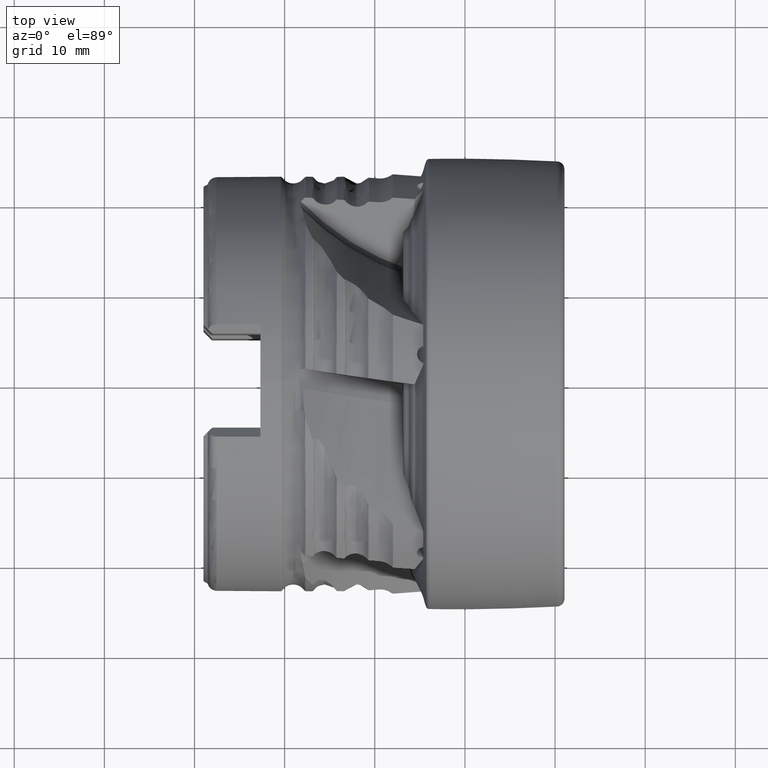
[diagram: clean part render]
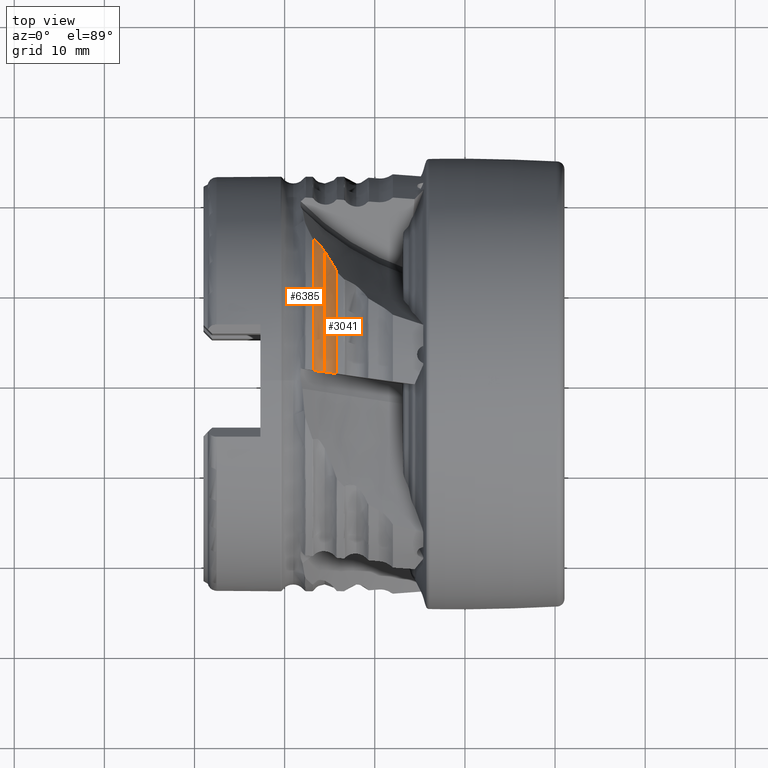
[diagram: same view with one multi-face feature highlighted, each face labeled with its STEP entity id]
A machine part, top view. The highlighted faces form ONE feature: a constant-radius fillet chain: 2 tangent blend faces with common blend radius 1.5 mm. The faces share edges in the B-rep.
Their STEP definitions:
[1] entity #6385 (Torus):
#118 = CARTESIAN_POINT ( 'NONE',  ( -26.79392989822396842, 0.0000000000000000000, 0.0000000000000000000 ) ) ;
#218 = CIRCLE ( 'NONE', #10230, 22.25000000000000000 ) ;
#595 = CARTESIAN_POINT ( 'NONE',  ( -25.71776792278862089, 14.62537613401117120, 16.77730285887452766 ) ) ;
#658 = CARTESIAN_POINT ( 'NONE',  ( -26.69614980013806971, 15.72618751149968475, 16.47843376629433720 ) ) ;
#687 = CARTESIAN_POINT ( 'NONE',  ( -25.67192528672354257, 0.9642252233599770683, 22.22910398275950783 ) ) ;
#990 = VERTEX_POINT ( 'NONE', #12282 ) ;
#1181 = CARTESIAN_POINT ( 'NONE',  ( -25.54999999999999361, 0.0000000000000000000, 0.0000000000000000000 ) ) ;
#1318 = AXIS2_PLACEMENT_3D ( 'NONE', #1181, #10918, #12448 ) ;
#1587 = EDGE_CURVE ( 'NONE', #990, #5705, #14664, .T. ) ;
#1743 = EDGE_CURVE ( 'NONE', #7801, #990, #218, .T. ) ;
#2001 = ORIENTED_EDGE ( 'NONE', *, *, #10287, .T. ) ;
#2035 = CARTESIAN_POINT ( 'NONE',  ( -26.50666080885806508, 15.58417444614990899, 16.35631834725118594 ) ) ;
#2249 = CIRCLE ( 'NONE', #5194, 22.91176470588235503 ) ;
#2613 = DIRECTION ( 'NONE',  ( 0.0000000000000000000, 0.0000000000000000000, -1.000000000000000000 ) ) ;
#3493 = CARTESIAN_POINT ( 'NONE',  ( -25.63219113664221283, 14.50265715853362636, 16.87484533230028916 ) ) ;
#3560 = TOROIDAL_SURFACE ( 'NONE', #1318, 23.75000000000000000, 1.500000000000001776 ) ;
#3804 = DIRECTION ( 'NONE',  ( 1.000000000000000000, -0.0000000000000000000, -0.0000000000000000000 ) ) ;
#4563 = EDGE_CURVE ( 'NONE', #7801, #12148, #6560, .T. ) ;
#5194 = AXIS2_PLACEMENT_3D ( 'NONE', #118, #14486, #10132 ) ;
#5319 = ORIENTED_EDGE ( 'NONE', *, *, #1587, .F. ) ;
#5705 = VERTEX_POINT ( 'NONE', #13583 ) ;
#6201 = CARTESIAN_POINT ( 'NONE',  ( -26.02905282516293894, 1.014416225707458930, 22.30034049576134336 ) ) ;
#6358 = CARTESIAN_POINT ( 'NONE',  ( -26.14898016930110103, 15.19702850895352064, 16.42058328729929784 ) ) ;
#6385 = ADVANCED_FACE ( 'NONE', ( #8453 ), #3560, .F. ) ;
#6560 = B_SPLINE_CURVE_WITH_KNOTS ( 'NONE', 3,
 ( #16535, #3493, #595, #11987, #12042, #6358, #15014, #10582, #16471, #2035, #7808, #658, #7744, #13502 ),
 .UNSPECIFIED., .F., .F.,
 ( 4, 2, 2, 2, 2, 2, 4 ),
 ( 0.003404119258190159945, 0.003933789536718946232, 0.004463459815247732519, 0.004728294954512125663, 0.004993130093776518806, 0.005257965233040911950, 0.005522800372305305093 ),
 .UNSPECIFIED. ) ;
#7332 = EDGE_LOOP ( 'NONE', ( #15980, #13409, #2001, #5319 ) ) ;
#7744 = CARTESIAN_POINT ( 'NONE',  ( -26.75048020262187976, 15.75195192211487338, 16.54921595590665362 ) ) ;
#7801 = VERTEX_POINT ( 'NONE', #16533 ) ;
#7808 = CARTESIAN_POINT ( 'NONE',  ( -26.57398537473117628, 15.64211366962749139, 16.38174621432887790 ) ) ;
#8453 = FACE_OUTER_BOUND ( 'NONE', #7332, .T. ) ;
#9106 = CARTESIAN_POINT ( 'NONE',  ( -26.65554080571130058, 1.102463369424745210, 22.67961936859184391 ) ) ;
#10132 = DIRECTION ( 'NONE',  ( 0.0000000000000000000, 0.0000000000000000000, -1.000000000000000000 ) ) ;
#10230 = AXIS2_PLACEMENT_3D ( 'NONE', #16866, #3804, #2613 ) ;
#10287 = EDGE_CURVE ( 'NONE', #12148, #5705, #2249, .T. ) ;
#10436 = CARTESIAN_POINT ( 'NONE',  ( -25.79377743606459816, 0.9813504261386493122, 22.24335457152137252 ) ) ;
#10582 = CARTESIAN_POINT ( 'NONE',  ( -26.31763482172236124, 15.39343591080955598, 16.35487867153377195 ) ) ;
#10918 = DIRECTION ( 'NONE',  ( 1.000000000000000000, -0.0000000000000000000, -0.0000000000000000000 ) ) ;
#11987 = CARTESIAN_POINT ( 'NONE',  ( -25.89823822507974782, 14.87493491714971583, 16.59877924937133287 ) ) ;
#12042 = CARTESIAN_POINT ( 'NONE',  ( -25.99333546667691408, 15.00239248397235237, 16.51676291115895623 ) ) ;
#12148 = VERTEX_POINT ( 'NONE', #18609 ) ;
#12282 = CARTESIAN_POINT ( 'NONE',  ( -25.54999999999999361, 0.9470897417925207007, 22.22983403044186801 ) ) ;
#12448 = DIRECTION ( 'NONE',  ( 0.0000000000000000000, 0.0000000000000000000, -1.000000000000000000 ) ) ;
#13409 = ORIENTED_EDGE ( 'NONE', *, *, #4563, .T. ) ;
#13476 = CARTESIAN_POINT ( 'NONE',  ( -26.79392989822396842, 1.121912688000183733, 22.88428005986250113 ) ) ;
#13502 = CARTESIAN_POINT ( 'NONE',  ( -26.79392989822408211, 15.76335011590291479, 16.62725939718232837 ) ) ;
#13583 = CARTESIAN_POINT ( 'NONE',  ( -26.79392989822396842, 1.121912688000183733, 22.88428005986250113 ) ) ;
#14486 = DIRECTION ( 'NONE',  ( 1.000000000000000000, -0.0000000000000000000, -0.0000000000000000000 ) ) ;
#14664 = B_SPLINE_CURVE_WITH_KNOTS ( 'NONE', 3,
 ( #16082, #687, #10436, #6201, #16312, #17788, #9106, #13476 ),
 .UNSPECIFIED., .F., .F.,
 ( 4, 2, 2, 4 ),
 ( 0.001473970468683669793, 0.001840347088350657292, 0.002206723708017644791, 0.002939476947351605911 ),
 .UNSPECIFIED. ) ;
#15014 = CARTESIAN_POINT ( 'NONE',  ( -26.20282554538661302, 15.26220150444675205, 16.39318882595821236 ) ) ;
#15980 = ORIENTED_EDGE ( 'NONE', *, *, #1743, .F. ) ;
#16082 = CARTESIAN_POINT ( 'NONE',  ( -25.54999999999999361, 0.9470897417925207007, 22.22983403044186801 ) ) ;
#16312 = CARTESIAN_POINT ( 'NONE',  ( -26.14513370125382608, 1.030730328926259043, 22.34398477332681310 ) ) ;
#16471 = CARTESIAN_POINT ( 'NONE',  ( -26.37810406465963098, 15.45902524390530530, 16.34392643072952467 ) ) ;
#16533 = CARTESIAN_POINT ( 'NONE',  ( -25.54999999999999005, 14.38208784914032634, 16.97698586615451077 ) ) ;
#16535 = CARTESIAN_POINT ( 'NONE',  ( -25.54999999999999005, 14.38208784914032634, 16.97698586615451077 ) ) ;
#16866 = CARTESIAN_POINT ( 'NONE',  ( -25.54999999999999361, 0.0000000000000000000, 0.0000000000000000000 ) ) ;
#17788 = CARTESIAN_POINT ( 'NONE',  ( -26.46779235424105181, 1.076077045341033545, 22.51313980849362650 ) ) ;
#18609 = CARTESIAN_POINT ( 'NONE',  ( -26.79392989822408211, 15.76335011590291479, 16.62725939718232837 ) ) ;
[2] entity #3041 (Torus):
#177 = EDGE_CURVE ( 'NONE', #4754, #990, #17462, .T. ) ;
#218 = CIRCLE ( 'NONE', #10230, 22.25000000000000000 ) ;
#373 = DIRECTION ( 'NONE',  ( 0.0000000000000000000, 0.0000000000000000000, -1.000000000000000000 ) ) ;
#990 = VERTEX_POINT ( 'NONE', #12282 ) ;
#1406 = CARTESIAN_POINT ( 'NONE',  ( -25.06939533480374749, 0.8795451609839772811, 22.30649836711386769 ) ) ;
#1424 = CARTESIAN_POINT ( 'NONE',  ( -24.45552297388017138, 0.7932710269790530511, 22.70317513507287899 ) ) ;
#1743 = EDGE_CURVE ( 'NONE', #7801, #990, #218, .T. ) ;
#1830 = DIRECTION ( 'NONE',  ( 1.000000000000000000, -0.0000000000000000000, -0.0000000000000000000 ) ) ;
#2198 = CARTESIAN_POINT ( 'NONE',  ( -25.41797234707092557, 14.18841145549501093, 17.14105921401921151 ) ) ;
#2332 = CARTESIAN_POINT ( 'NONE',  ( -25.54999999999999361, 0.0000000000000000000, 0.0000000000000000000 ) ) ;
#2612 = CARTESIAN_POINT ( 'NONE',  ( -24.30607010177602589, 0.7722667955848676602, 22.89874594675771036 ) ) ;
#2613 = DIRECTION ( 'NONE',  ( 0.0000000000000000000, 0.0000000000000000000, -1.000000000000000000 ) ) ;
#2971 = CARTESIAN_POINT ( 'NONE',  ( -24.30607010177602589, 12.27828868782783900, 19.34405823078691000 ) ) ;
#3041 = ADVANCED_FACE ( 'NONE', ( #15666 ), #18615, .F. ) ;
#3187 = VERTEX_POINT ( 'NONE', #2971 ) ;
#3780 = CARTESIAN_POINT ( 'NONE',  ( -25.29409862967764511, 13.99942084753297777, 17.31775217957665092 ) ) ;
#3804 = DIRECTION ( 'NONE',  ( 1.000000000000000000, -0.0000000000000000000, -0.0000000000000000000 ) ) ;
#4260 = CARTESIAN_POINT ( 'NONE',  ( -24.37529603350133911, 0.7819958658125935047, 22.79562907390959481 ) ) ;
#4299 = CARTESIAN_POINT ( 'NONE',  ( -25.42740005878285103, 0.9298594437193991036, 22.23056811772882924 ) ) ;
#4754 = VERTEX_POINT ( 'NONE', #2612 ) ;
#5017 = DIRECTION ( 'NONE',  ( 0.0000000000000000000, 0.0000000000000000000, -1.000000000000000000 ) ) ;
#5078 = CARTESIAN_POINT ( 'NONE',  ( -24.45192411117634990, 12.59338197662097691, 18.88769317808564452 ) ) ;
#6058 = ORIENTED_EDGE ( 'NONE', *, *, #11832, .F. ) ;
#6517 = AXIS2_PLACEMENT_3D ( 'NONE', #2332, #10750, #5017 ) ;
#6576 = CARTESIAN_POINT ( 'NONE',  ( -24.30607010177602589, 12.27828868782783900, 19.34405823078691000 ) ) ;
#7043 = CIRCLE ( 'NONE', #7128, 22.91176470588234793 ) ;
#7128 = AXIS2_PLACEMENT_3D ( 'NONE', #17555, #1830, #373 ) ;
#7179 = ORIENTED_EDGE ( 'NONE', *, *, #13249, .T. ) ;
#7801 = VERTEX_POINT ( 'NONE', #16533 ) ;
#9012 = B_SPLINE_CURVE_WITH_KNOTS ( 'NONE', 3,
 ( #6576, #5078, #10881, #13853, #12338, #3780, #2198, #12220 ),
 .UNSPECIFIED., .F., .F.,
 ( 4, 2, 2, 4 ),
 ( 7.778976807967744053E-07, 0.001702448577935483610, 0.002553283918062821886, 0.003404119258190159945 ),
 .UNSPECIFIED. ) ;
#9625 = CARTESIAN_POINT ( 'NONE',  ( -24.30607010177602589, 0.7722667955848676602, 22.89874594675771036 ) ) ;
#10097 = CARTESIAN_POINT ( 'NONE',  ( -24.95395503759759137, 0.8633210852563323323, 22.35148515994786322 ) ) ;
#10167 = CARTESIAN_POINT ( 'NONE',  ( -25.30676505422161071, 0.9129052994840359814, 22.24609233784739715 ) ) ;
#10230 = AXIS2_PLACEMENT_3D ( 'NONE', #16866, #3804, #2613 ) ;
#10750 = DIRECTION ( 'NONE',  ( 1.000000000000000000, -0.0000000000000000000, -0.0000000000000000000 ) ) ;
#10881 = CARTESIAN_POINT ( 'NONE',  ( -24.63684478647247289, 12.92766603325202013, 18.46748635540382466 ) ) ;
#11832 = EDGE_CURVE ( 'NONE', #3187, #4754, #7043, .T. ) ;
#12220 = CARTESIAN_POINT ( 'NONE',  ( -25.54999999999999005, 14.38208784914032634, 16.97698586615451077 ) ) ;
#12282 = CARTESIAN_POINT ( 'NONE',  ( -25.54999999999999361, 0.9470897417925207007, 22.22983403044186801 ) ) ;
#12338 = CARTESIAN_POINT ( 'NONE',  ( -25.05997663747117699, 13.63181383932776214, 17.68451532323503272 ) ) ;
#12576 = EDGE_LOOP ( 'NONE', ( #7179, #13687, #15433, #6058 ) ) ;
#13070 = CARTESIAN_POINT ( 'NONE',  ( -24.73911413653102542, 0.8331271656922232260, 22.46678836995064188 ) ) ;
#13249 = EDGE_CURVE ( 'NONE', #3187, #7801, #9012, .T. ) ;
#13687 = ORIENTED_EDGE ( 'NONE', *, *, #1743, .T. ) ;
#13853 = CARTESIAN_POINT ( 'NONE',  ( -24.94950255529106542, 13.45271604359154338, 17.87526295041227087 ) ) ;
#14334 = CARTESIAN_POINT ( 'NONE',  ( -25.54999999999999361, 0.9470897417925207007, 22.22983403044186801 ) ) ;
#14363 = CARTESIAN_POINT ( 'NONE',  ( -24.63705966973198258, 0.8187843457431792649, 22.53870217143361998 ) ) ;
#15433 = ORIENTED_EDGE ( 'NONE', *, *, #177, .F. ) ;
#15666 = FACE_OUTER_BOUND ( 'NONE', #12576, .T. ) ;
#16533 = CARTESIAN_POINT ( 'NONE',  ( -25.54999999999999005, 14.38208784914032634, 16.97698586615451077 ) ) ;
#16866 = CARTESIAN_POINT ( 'NONE',  ( -25.54999999999999361, 0.0000000000000000000, 0.0000000000000000000 ) ) ;
#17462 = B_SPLINE_CURVE_WITH_KNOTS ( 'NONE', 3,
 ( #9625, #4260, #1424, #14363, #13070, #10097, #1406, #10167, #4299, #14334 ),
 .UNSPECIFIED., .F., .F.,
 ( 4, 2, 2, 2, 4 ),
 ( 3.548392579455204040E-07, 0.0003687587466143765606, 0.0007371626539708076020, 0.001105566561327238698, 0.001473970468683669793 ),
 .UNSPECIFIED. ) ;
#17555 = CARTESIAN_POINT ( 'NONE',  ( -24.30607010177602589, 0.0000000000000000000, 0.0000000000000000000 ) ) ;
#18615 = TOROIDAL_SURFACE ( 'NONE', #6517, 23.75000000000000000, 1.500000000000001776 ) ;